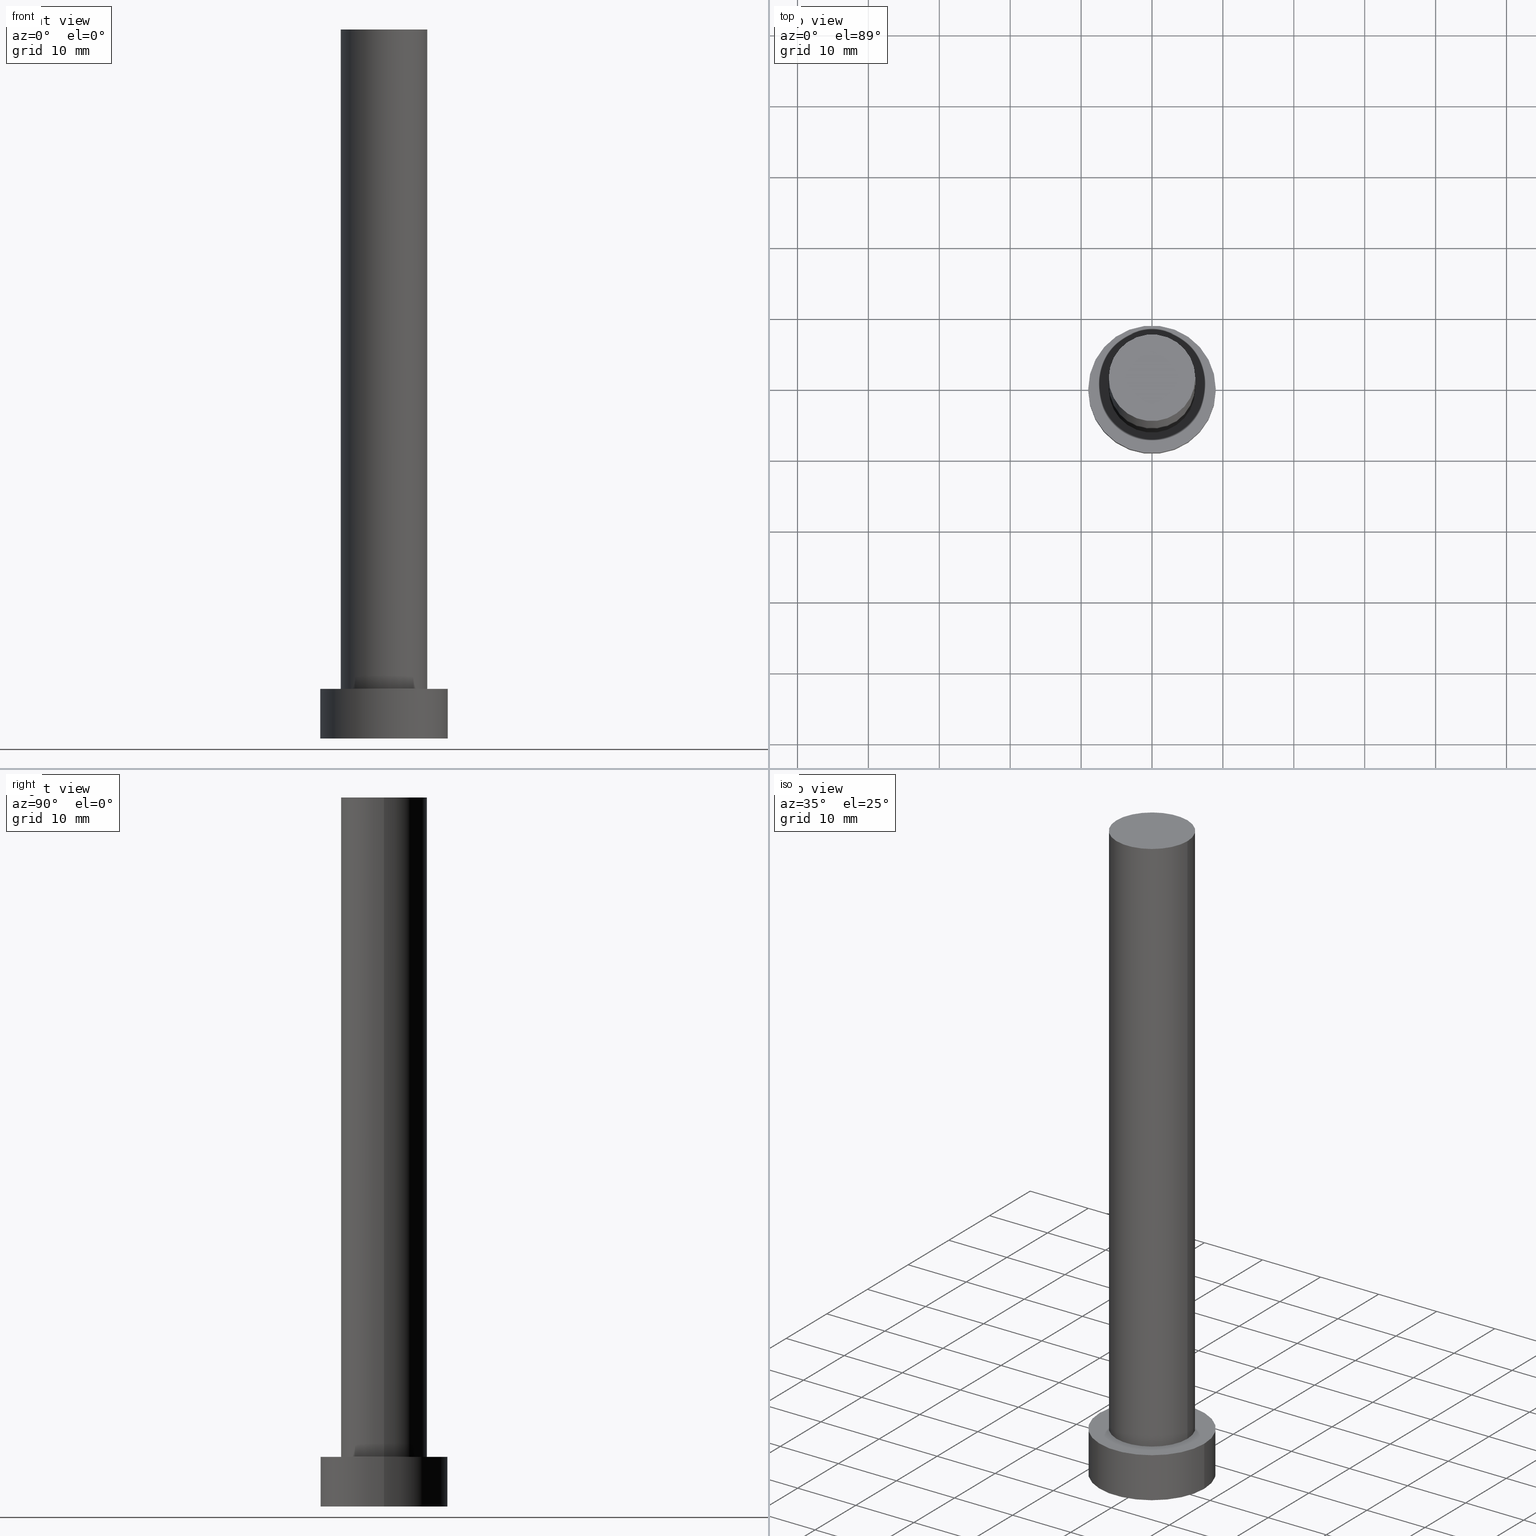
[diagram: canonical four-view strip — front | top / right | iso, engineering-drawing reading convention]
A machine part, canonical four-view strip (front | top / right | iso — engineering-drawing reading convention). The complete STEP part file that produces these views, byte-faithful:
ISO-10303-21;
HEADER;
FILE_DESCRIPTION (( 'STEP AP203' ),
    '1' );
FILE_NAME ('cea7.STEP',
    '2023-02-12T11:04:01',
    ( '' ),
    ( '' ),
    'SwSTEP 2.0',
    'SolidWorks 2019',
    '' );
FILE_SCHEMA (( 'CONFIG_CONTROL_DESIGN' ));
ENDSEC;

DATA;
#1 = CARTESIAN_POINT ( 'NONE',  ( 6.099999999999999645, 7.470345474798852320E-16, 100.0000000000000000 ) ) ;
#2 = DIRECTION ( 'NONE',  ( 0.000000000000000000, 0.000000000000000000, 1.000000000000000000 ) ) ;
#3 = EDGE_CURVE ( 'NONE', #233, #41, #45, .T. ) ;
#4 = AXIS2_PLACEMENT_3D ( 'NONE', #196, #84, #217 ) ;
#5 = CARTESIAN_POINT ( 'NONE',  ( 0.000000000000000000, 0.000000000000000000, 0.000000000000000000 ) ) ;
#6 = LOCAL_TIME ( 12, 4, 1.000000000000000000, #212 ) ;
#7 = PERSON_AND_ORGANIZATION_ROLE ( 'creator' ) ;
#8 = COORDINATED_UNIVERSAL_TIME_OFFSET ( 1, 0, .AHEAD. ) ;
#9 = VECTOR ( 'NONE', #107, 1000.000000000000000 ) ;
#10 = EDGE_LOOP ( 'NONE', ( #96, #36, #193, #195 ) ) ;
#11 = APPROVAL_ROLE ( '' ) ;
#12 = EDGE_LOOP ( 'NONE', ( #56, #39, #161, #115 ) ) ;
#13 = EDGE_CURVE ( 'NONE', #16, #140, #89, .T. ) ;
#14 = PERSON_AND_ORGANIZATION ( #154, #135 ) ;
#15 = CC_DESIGN_DATE_AND_TIME_ASSIGNMENT ( #113, #194, ( #108 ) ) ;
#16 = VERTEX_POINT ( 'NONE', #1 ) ;
#17 = LOCAL_TIME ( 12, 4, 1.000000000000000000, #8 ) ;
#18 = EDGE_LOOP ( 'NONE', ( #75, #176 ) ) ;
#19 = DIRECTION ( 'NONE',  ( 0.000000000000000000, 0.000000000000000000, 1.000000000000000000 ) ) ;
#20 = CYLINDRICAL_SURFACE ( 'NONE', #71, 6.099999999999999645 ) ;
#21 = DIRECTION ( 'NONE',  ( 1.000000000000000000, 0.000000000000000000, 0.000000000000000000 ) ) ;
#22 = CARTESIAN_POINT ( 'NONE',  ( 0.000000000000000000, 0.000000000000000000, 7.000000000000000000 ) ) ;
#23 = LINE ( 'NONE', #44, #9 ) ;
#24 = AXIS2_PLACEMENT_3D ( 'NONE', #22, #144, #181 ) ;
#25 = DIRECTION ( 'NONE',  ( 0.000000000000000000, 0.000000000000000000, 1.000000000000000000 ) ) ;
#26 = CC_DESIGN_PERSON_AND_ORGANIZATION_ASSIGNMENT ( #110, #7, ( #108 ) ) ;
#27 =( LENGTH_UNIT ( ) NAMED_UNIT ( * ) SI_UNIT ( .MILLI., .METRE. ) );
#28 = DESIGN_CONTEXT ( 'detailed design', #49, 'design' ) ;
#29 = APPROVAL_DATE_TIME ( #149, #48 ) ;
#30 = DIRECTION ( 'NONE',  ( 1.000000000000000000, 0.000000000000000000, 0.000000000000000000 ) ) ;
#31 = CALENDAR_DATE ( 2023, 12, 2 ) ;
#32 = CIRCLE ( 'NONE', #78, 9.000000000000000000 ) ;
#33 = EDGE_CURVE ( 'NONE', #16, #160, #177, .T. ) ;
#34 = CIRCLE ( 'NONE', #171, 6.099999999999999645 ) ;
#35 = EDGE_CURVE ( 'NONE', #233, #230, #47, .T. ) ;
#36 = ORIENTED_EDGE ( 'NONE', *, *, #33, .T. ) ;
#37 = ORIENTED_EDGE ( 'NONE', *, *, #112, .T. ) ;
#38 = DATE_AND_TIME ( #31, #67 ) ;
#39 = ORIENTED_EDGE ( 'NONE', *, *, #35, .F. ) ;
#40 = VECTOR ( 'NONE', #165, 1000.000000000000000 ) ;
#41 = VERTEX_POINT ( 'NONE', #105 ) ;
#42 = CARTESIAN_POINT ( 'NONE',  ( 0.000000000000000000, 0.000000000000000000, 0.000000000000000000 ) ) ;
#43 = LOCAL_TIME ( 12, 4, 1.000000000000000000, #93 ) ;
#44 = CARTESIAN_POINT ( 'NONE',  ( -6.099999999999999645, 0.000000000000000000, 100.0000000000000000 ) ) ;
#45 = LINE ( 'NONE', #184, #190 ) ;
#46 = CARTESIAN_POINT ( 'NONE',  ( -6.099999999999999645, 0.000000000000000000, 7.000000000000000000 ) ) ;
#47 = CIRCLE ( 'NONE', #226, 9.000000000000000000 ) ;
#48 = APPROVAL ( #186, 'NEUR�EN�' ) ;
#49 = APPLICATION_CONTEXT ( 'configuration controlled 3d designs of mechanical parts and assemblies' ) ;
#50 = AXIS2_PLACEMENT_3D ( 'NONE', #5, #2, #91 ) ;
#51 = COORDINATED_UNIVERSAL_TIME_OFFSET ( 1, 0, .AHEAD. ) ;
#52 = ADVANCED_FACE ( 'NONE', ( #106 ), #102, .T. ) ;
#53 = ORIENTED_EDGE ( 'NONE', *, *, #156, .F. ) ;
#54 = CC_DESIGN_DATE_AND_TIME_ASSIGNMENT ( #250, #207, ( #73 ) ) ;
#55 = APPROVAL_ROLE ( '' ) ;
#56 = ORIENTED_EDGE ( 'NONE', *, *, #224, .F. ) ;
#57 = AXIS2_PLACEMENT_3D ( 'NONE', #123, #253, #21 ) ;
#58 = CIRCLE ( 'NONE', #179, 9.000000000000000000 ) ;
#59 = DIRECTION ( 'NONE',  ( 1.000000000000000000, 0.000000000000000000, -0.000000000000000000 ) ) ;
#60 = DIRECTION ( 'NONE',  ( 0.000000000000000000, 0.000000000000000000, 1.000000000000000000 ) ) ;
#61 = EDGE_CURVE ( 'NONE', #234, #41, #32, .T. ) ;
#62 = CARTESIAN_POINT ( 'NONE',  ( 0.000000000000000000, 0.000000000000000000, 100.0000000000000000 ) ) ;
#63 = DIRECTION ( 'NONE',  ( -0.000000000000000000, -0.000000000000000000, -1.000000000000000000 ) ) ;
#64 = APPLICATION_CONTEXT ( 'configuration controlled 3d designs of mechanical parts and assemblies' ) ;
#65 = CYLINDRICAL_SURFACE ( 'NONE', #231, 9.000000000000000000 ) ;
#66 = CARTESIAN_POINT ( 'NONE',  ( 9.000000000000000000, 1.102182119232617714E-15, 7.000000000000000000 ) ) ;
#67 = LOCAL_TIME ( 12, 4, 1.000000000000000000, #51 ) ;
#68 = CARTESIAN_POINT ( 'NONE',  ( 0.000000000000000000, 0.000000000000000000, 100.0000000000000000 ) ) ;
#69 = PERSON_AND_ORGANIZATION ( #154, #135 ) ;
#70 = PLANE ( 'NONE',  #114 ) ;
#71 = AXIS2_PLACEMENT_3D ( 'NONE', #178, #81, #219 ) ;
#72 =( NAMED_UNIT ( * ) PLANE_ANGLE_UNIT ( ) SI_UNIT ( $, .RADIAN. ) );
#73 = SECURITY_CLASSIFICATION ( '', '', #116 ) ;
#74 = MANIFOLD_SOLID_BREP ( 'P�idat vysunut�m3', #122 ) ;
#75 = ORIENTED_EDGE ( 'NONE', *, *, #103, .T. ) ;
#76 = PERSON_AND_ORGANIZATION ( #154, #135 ) ;
#77 = CC_DESIGN_APPROVAL ( #48, ( #108 ) ) ;
#78 = AXIS2_PLACEMENT_3D ( 'NONE', #42, #180, #252 ) ;
#79 = DIRECTION ( 'NONE',  ( 1.000000000000000000, 0.000000000000000000, 0.000000000000000000 ) ) ;
#80 = ADVANCED_FACE ( 'NONE', ( #142, #238 ), #199, .T. ) ;
#81 = DIRECTION ( 'NONE',  ( -0.000000000000000000, -0.000000000000000000, -1.000000000000000000 ) ) ;
#82 = DIRECTION ( 'NONE',  ( -0.000000000000000000, -0.000000000000000000, -1.000000000000000000 ) ) ;
#83 = APPROVAL ( #158, 'NEUR�EN�' ) ;
#84 = DIRECTION ( 'NONE',  ( 0.000000000000000000, 0.000000000000000000, 1.000000000000000000 ) ) ;
#85 = DIRECTION ( 'NONE',  ( 0.000000000000000000, 0.000000000000000000, 1.000000000000000000 ) ) ;
#86 = DIRECTION ( 'NONE',  ( 1.000000000000000000, 0.000000000000000000, 0.000000000000000000 ) ) ;
#87 = PERSON_AND_ORGANIZATION_ROLE ( 'design_owner' ) ;
#88 = ADVANCED_BREP_SHAPE_REPRESENTATION ( 'cea7', ( #74, #50 ), #191 ) ;
#89 = CIRCLE ( 'NONE', #4, 6.099999999999999645 ) ;
#90 = PERSON_AND_ORGANIZATION ( #154, #135 ) ;
#91 = DIRECTION ( 'NONE',  ( 1.000000000000000000, 0.000000000000000000, 0.000000000000000000 ) ) ;
#92 = EDGE_CURVE ( 'NONE', #160, #248, #151, .T. ) ;
#93 = COORDINATED_UNIVERSAL_TIME_OFFSET ( 1, 0, .AHEAD. ) ;
#94 = LOCAL_TIME ( 12, 4, 1.000000000000000000, #153 ) ;
#95 = PERSON_AND_ORGANIZATION ( #154, #135 ) ;
#96 = ORIENTED_EDGE ( 'NONE', *, *, #13, .F. ) ;
#97 = APPROVAL_STATUS ( 'not_yet_approved' ) ;
#98 = ORIENTED_EDGE ( 'NONE', *, *, #168, .F. ) ;
#99 = ADVANCED_FACE ( 'NONE', ( #197 ), #20, .T. ) ;
#100 = CIRCLE ( 'NONE', #209, 9.000000000000000000 ) ;
#101 = PRODUCT ( 'cea7', 'cea7', '', ( #185 ) ) ;
#102 = CYLINDRICAL_SURFACE ( 'NONE', #170, 6.099999999999999645 ) ;
#103 = EDGE_CURVE ( 'NONE', #140, #16, #183, .T. ) ;
#104 = EDGE_LOOP ( 'NONE', ( #136, #255, #37, #211 ) ) ;
#105 = CARTESIAN_POINT ( 'NONE',  ( -9.000000000000000000, 0.000000000000000000, 0.000000000000000000 ) ) ;
#106 = FACE_OUTER_BOUND ( 'NONE', #10, .T. ) ;
#107 = DIRECTION ( 'NONE',  ( -0.000000000000000000, -0.000000000000000000, -1.000000000000000000 ) ) ;
#108 = PRODUCT_DEFINITION ( 'NEZN�M�', '', #133, #28 ) ;
#109 = CARTESIAN_POINT ( 'NONE',  ( 0.000000000000000000, 0.000000000000000000, 0.000000000000000000 ) ) ;
#110 = PERSON_AND_ORGANIZATION ( #154, #135 ) ;
#111 = PLANE ( 'NONE',  #124 ) ;
#112 = EDGE_CURVE ( 'NONE', #140, #248, #23, .T. ) ;
#113 = DATE_AND_TIME ( #169, #43 ) ;
#114 = AXIS2_PLACEMENT_3D ( 'NONE', #203, #223, #148 ) ;
#115 = ORIENTED_EDGE ( 'NONE', *, *, #173, .T. ) ;
#116 = SECURITY_CLASSIFICATION_LEVEL ( 'unclassified' ) ;
#117 = EDGE_LOOP ( 'NONE', ( #98, #216 ) ) ;
#118 = PERSON_AND_ORGANIZATION_ROLE ( 'classification_officer' ) ;
#119 = CARTESIAN_POINT ( 'NONE',  ( 0.000000000000000000, 0.000000000000000000, 100.0000000000000000 ) ) ;
#120 = EDGE_LOOP ( 'NONE', ( #53, #125, #155, #198 ) ) ;
#121 = UNCERTAINTY_MEASURE_WITH_UNIT (LENGTH_MEASURE( 1.000000000000000082E-05 ), #27, 'distance_accuracy_value', 'NONE');
#122 = CLOSED_SHELL ( 'NONE', ( #52, #146, #137, #80, #215, #99, #182 ) ) ;
#123 = CARTESIAN_POINT ( 'NONE',  ( 0.000000000000000000, 0.000000000000000000, 7.000000000000000000 ) ) ;
#124 = AXIS2_PLACEMENT_3D ( 'NONE', #68, #25, #225 ) ;
#125 = ORIENTED_EDGE ( 'NONE', *, *, #224, .T. ) ;
#126 = CC_DESIGN_PERSON_AND_ORGANIZATION_ASSIGNMENT ( #76, #227, ( #133 ) ) ;
#127 = FACE_OUTER_BOUND ( 'NONE', #120, .T. ) ;
#128 = CARTESIAN_POINT ( 'NONE',  ( -9.000000000000000000, 0.000000000000000000, 7.000000000000000000 ) ) ;
#129 = APPROVAL_PERSON_ORGANIZATION ( #172, #131, #11 ) ;
#130 = DIRECTION ( 'NONE',  ( 1.000000000000000000, 0.000000000000000000, 0.000000000000000000 ) ) ;
#131 = APPROVAL ( #97, 'NEUR�EN�' ) ;
#132 = CALENDAR_DATE ( 2023, 12, 2 ) ;
#133 = PRODUCT_DEFINITION_FORMATION_WITH_SPECIFIED_SOURCE ( 'LIBOVOLN�', '', #101, .NOT_KNOWN. ) ;
#134 = ORIENTED_EDGE ( 'NONE', *, *, #156, .T. ) ;
#135 = ORGANIZATION ( 'NEUR�EN�', 'NEUR�EN�', '' ) ;
#136 = ORIENTED_EDGE ( 'NONE', *, *, #33, .F. ) ;
#137 = ADVANCED_FACE ( 'NONE', ( #164 ), #241, .T. ) ;
#138 = EDGE_LOOP ( 'NONE', ( #192, #213 ) ) ;
#139 = PERSON_AND_ORGANIZATION ( #154, #135 ) ;
#140 = VERTEX_POINT ( 'NONE', #221 ) ;
#141 = CARTESIAN_POINT ( 'NONE',  ( 6.099999999999999645, 7.470345474798852320E-16, 100.0000000000000000 ) ) ;
#142 = FACE_BOUND ( 'NONE', #117, .T. ) ;
#143 = CC_DESIGN_PERSON_AND_ORGANIZATION_ASSIGNMENT ( #95, #118, ( #73 ) ) ;
#144 = DIRECTION ( 'NONE',  ( -0.000000000000000000, -0.000000000000000000, -1.000000000000000000 ) ) ;
#145 = DIRECTION ( 'NONE',  ( -1.000000000000000000, 0.000000000000000000, 0.000000000000000000 ) ) ;
#146 = ADVANCED_FACE ( 'NONE', ( #127 ), #65, .T. ) ;
#147 = CARTESIAN_POINT ( 'NONE',  ( 9.000000000000000000, 1.102182119232617714E-15, 0.000000000000000000 ) ) ;
#148 = DIRECTION ( 'NONE',  ( 1.000000000000000000, 0.000000000000000000, -0.000000000000000000 ) ) ;
#149 = DATE_AND_TIME ( #132, #17 ) ;
#150 = DIRECTION ( 'NONE',  ( 0.000000000000000000, 0.000000000000000000, 1.000000000000000000 ) ) ;
#151 = CIRCLE ( 'NONE', #57, 6.099999999999999645 ) ;
#152 = FACE_OUTER_BOUND ( 'NONE', #138, .T. ) ;
#153 = COORDINATED_UNIVERSAL_TIME_OFFSET ( 1, 0, .AHEAD. ) ;
#154 = PERSON ( 'NEUR�EN�', 'NEUR�EN�', 'NEUR�EN�', ('NEUR�EN�'), ('NEUR�EN�'), ('NEUR�EN�') ) ;
#155 = ORIENTED_EDGE ( 'NONE', *, *, #61, .T. ) ;
#156 = EDGE_CURVE ( 'NONE', #230, #233, #100, .T. ) ;
#157 = VECTOR ( 'NONE', #159, 1000.000000000000000 ) ;
#158 = APPROVAL_STATUS ( 'not_yet_approved' ) ;
#159 = DIRECTION ( 'NONE',  ( -0.000000000000000000, -0.000000000000000000, -1.000000000000000000 ) ) ;
#160 = VERTEX_POINT ( 'NONE', #167 ) ;
#161 = ORIENTED_EDGE ( 'NONE', *, *, #3, .T. ) ;
#162 = DIRECTION ( 'NONE',  ( 1.000000000000000000, 0.000000000000000000, 0.000000000000000000 ) ) ;
#163 = CC_DESIGN_APPROVAL ( #131, ( #133 ) ) ;
#164 = FACE_OUTER_BOUND ( 'NONE', #12, .T. ) ;
#165 = DIRECTION ( 'NONE',  ( -0.000000000000000000, -0.000000000000000000, -1.000000000000000000 ) ) ;
#166 = DIRECTION ( 'NONE',  ( 0.000000000000000000, 0.000000000000000000, 1.000000000000000000 ) ) ;
#167 = CARTESIAN_POINT ( 'NONE',  ( 6.099999999999999645, 7.470345474798852320E-16, 7.000000000000000000 ) ) ;
#168 = EDGE_CURVE ( 'NONE', #248, #160, #34, .T. ) ;
#169 = CALENDAR_DATE ( 2023, 12, 2 ) ;
#170 = AXIS2_PLACEMENT_3D ( 'NONE', #119, #236, #254 ) ;
#171 = AXIS2_PLACEMENT_3D ( 'NONE', #205, #150, #30 ) ;
#172 = PERSON_AND_ORGANIZATION ( #154, #135 ) ;
#173 = EDGE_CURVE ( 'NONE', #41, #234, #58, .T. ) ;
#174 = PRODUCT_DEFINITION_SHAPE ( 'NONE', 'NONE',  #108 ) ;
#175 = SHAPE_DEFINITION_REPRESENTATION ( #174, #88 ) ;
#176 = ORIENTED_EDGE ( 'NONE', *, *, #13, .T. ) ;
#177 = LINE ( 'NONE', #141, #157 ) ;
#178 = CARTESIAN_POINT ( 'NONE',  ( 0.000000000000000000, 0.000000000000000000, 100.0000000000000000 ) ) ;
#179 = AXIS2_PLACEMENT_3D ( 'NONE', #109, #166, #86 ) ;
#180 = DIRECTION ( 'NONE',  ( 0.000000000000000000, 0.000000000000000000, 1.000000000000000000 ) ) ;
#181 = DIRECTION ( 'NONE',  ( -1.000000000000000000, 0.000000000000000000, 0.000000000000000000 ) ) ;
#182 = ADVANCED_FACE ( 'NONE', ( #245 ), #111, .T. ) ;
#183 = CIRCLE ( 'NONE', #235, 6.099999999999999645 ) ;
#184 = CARTESIAN_POINT ( 'NONE',  ( -9.000000000000000000, 0.000000000000000000, 7.000000000000000000 ) ) ;
#185 = MECHANICAL_CONTEXT ( 'NONE', #64, 'mechanical' ) ;
#186 = APPROVAL_STATUS ( 'not_yet_approved' ) ;
#187 = CC_DESIGN_PERSON_AND_ORGANIZATION_ASSIGNMENT ( #139, #189, ( #133 ) ) ;
#188 = APPROVAL_ROLE ( '' ) ;
#189 = PERSON_AND_ORGANIZATION_ROLE ( 'design_supplier' ) ;
#190 = VECTOR ( 'NONE', #82, 1000.000000000000000 ) ;
#191 =( GEOMETRIC_REPRESENTATION_CONTEXT ( 3 ) GLOBAL_UNCERTAINTY_ASSIGNED_CONTEXT ( ( #121 ) ) GLOBAL_UNIT_ASSIGNED_CONTEXT ( ( #27, #72, #201 ) ) REPRESENTATION_CONTEXT ( 'NONE', 'WORKASPACE' ) );
#192 = ORIENTED_EDGE ( 'NONE', *, *, #173, .F. ) ;
#193 = ORIENTED_EDGE ( 'NONE', *, *, #92, .T. ) ;
#194 = DATE_TIME_ROLE ( 'creation_date' ) ;
#195 = ORIENTED_EDGE ( 'NONE', *, *, #112, .F. ) ;
#196 = CARTESIAN_POINT ( 'NONE',  ( 0.000000000000000000, 0.000000000000000000, 100.0000000000000000 ) ) ;
#197 = FACE_OUTER_BOUND ( 'NONE', #104, .T. ) ;
#198 = ORIENTED_EDGE ( 'NONE', *, *, #3, .F. ) ;
#199 = PLANE ( 'NONE',  #218 ) ;
#200 = CARTESIAN_POINT ( 'NONE',  ( 0.000000000000000000, 0.000000000000000000, 7.000000000000000000 ) ) ;
#201 =( NAMED_UNIT ( * ) SI_UNIT ( $, .STERADIAN. ) SOLID_ANGLE_UNIT ( ) );
#202 = CC_DESIGN_PERSON_AND_ORGANIZATION_ASSIGNMENT ( #90, #87, ( #101 ) ) ;
#203 = CARTESIAN_POINT ( 'NONE',  ( 0.000000000000000000, 0.000000000000000000, 0.000000000000000000 ) ) ;
#204 = DIRECTION ( 'NONE',  ( 0.000000000000000000, 0.000000000000000000, 1.000000000000000000 ) ) ;
#205 = CARTESIAN_POINT ( 'NONE',  ( 0.000000000000000000, 0.000000000000000000, 7.000000000000000000 ) ) ;
#206 = APPROVAL_DATE_TIME ( #232, #131 ) ;
#207 = DATE_TIME_ROLE ( 'classification_date' ) ;
#208 = CC_DESIGN_APPROVAL ( #83, ( #73 ) ) ;
#209 = AXIS2_PLACEMENT_3D ( 'NONE', #200, #204, #130 ) ;
#210 = CALENDAR_DATE ( 2023, 12, 2 ) ;
#211 = ORIENTED_EDGE ( 'NONE', *, *, #168, .T. ) ;
#212 = COORDINATED_UNIVERSAL_TIME_OFFSET ( 1, 0, .AHEAD. ) ;
#213 = ORIENTED_EDGE ( 'NONE', *, *, #61, .F. ) ;
#214 = APPROVAL_PERSON_ORGANIZATION ( #14, #83, #55 ) ;
#215 = ADVANCED_FACE ( 'NONE', ( #152 ), #70, .F. ) ;
#216 = ORIENTED_EDGE ( 'NONE', *, *, #92, .F. ) ;
#217 = DIRECTION ( 'NONE',  ( 1.000000000000000000, 0.000000000000000000, 0.000000000000000000 ) ) ;
#218 = AXIS2_PLACEMENT_3D ( 'NONE', #222, #85, #59 ) ;
#219 = DIRECTION ( 'NONE',  ( -1.000000000000000000, 0.000000000000000000, 0.000000000000000000 ) ) ;
#220 = CC_DESIGN_SECURITY_CLASSIFICATION ( #73, ( #133 ) ) ;
#221 = CARTESIAN_POINT ( 'NONE',  ( -6.099999999999999645, 0.000000000000000000, 100.0000000000000000 ) ) ;
#222 = CARTESIAN_POINT ( 'NONE',  ( 0.000000000000000000, 0.000000000000000000, 7.000000000000000000 ) ) ;
#223 = DIRECTION ( 'NONE',  ( 0.000000000000000000, 0.000000000000000000, 1.000000000000000000 ) ) ;
#224 = EDGE_CURVE ( 'NONE', #230, #234, #242, .T. ) ;
#225 = DIRECTION ( 'NONE',  ( 1.000000000000000000, 0.000000000000000000, -0.000000000000000000 ) ) ;
#226 = AXIS2_PLACEMENT_3D ( 'NONE', #237, #19, #79 ) ;
#227 = PERSON_AND_ORGANIZATION_ROLE ( 'creator' ) ;
#228 = PRODUCT_RELATED_PRODUCT_CATEGORY ( 'detail', '', ( #101 ) ) ;
#229 = ORIENTED_EDGE ( 'NONE', *, *, #35, .T. ) ;
#230 = VERTEX_POINT ( 'NONE', #246 ) ;
#231 = AXIS2_PLACEMENT_3D ( 'NONE', #239, #63, #145 ) ;
#232 = DATE_AND_TIME ( #210, #94 ) ;
#233 = VERTEX_POINT ( 'NONE', #128 ) ;
#234 = VERTEX_POINT ( 'NONE', #147 ) ;
#235 = AXIS2_PLACEMENT_3D ( 'NONE', #62, #60, #162 ) ;
#236 = DIRECTION ( 'NONE',  ( -0.000000000000000000, -0.000000000000000000, -1.000000000000000000 ) ) ;
#237 = CARTESIAN_POINT ( 'NONE',  ( 0.000000000000000000, 0.000000000000000000, 7.000000000000000000 ) ) ;
#238 = FACE_OUTER_BOUND ( 'NONE', #251, .T. ) ;
#239 = CARTESIAN_POINT ( 'NONE',  ( 0.000000000000000000, 0.000000000000000000, 7.000000000000000000 ) ) ;
#240 = APPROVAL_PERSON_ORGANIZATION ( #69, #48, #188 ) ;
#241 = CYLINDRICAL_SURFACE ( 'NONE', #24, 9.000000000000000000 ) ;
#242 = LINE ( 'NONE', #66, #40 ) ;
#243 = APPLICATION_PROTOCOL_DEFINITION ( 'international standard', 'config_control_design', 1994, #64 ) ;
#244 = APPLICATION_PROTOCOL_DEFINITION ( 'international standard', 'config_control_design', 1994, #49 ) ;
#245 = FACE_OUTER_BOUND ( 'NONE', #18, .T. ) ;
#246 = CARTESIAN_POINT ( 'NONE',  ( 9.000000000000000000, 1.102182119232617714E-15, 7.000000000000000000 ) ) ;
#247 = CALENDAR_DATE ( 2023, 12, 2 ) ;
#248 = VERTEX_POINT ( 'NONE', #46 ) ;
#249 = APPROVAL_DATE_TIME ( #38, #83 ) ;
#250 = DATE_AND_TIME ( #247, #6 ) ;
#251 = EDGE_LOOP ( 'NONE', ( #229, #134 ) ) ;
#252 = DIRECTION ( 'NONE',  ( 1.000000000000000000, 0.000000000000000000, 0.000000000000000000 ) ) ;
#253 = DIRECTION ( 'NONE',  ( 0.000000000000000000, 0.000000000000000000, 1.000000000000000000 ) ) ;
#254 = DIRECTION ( 'NONE',  ( -1.000000000000000000, 0.000000000000000000, 0.000000000000000000 ) ) ;
#255 = ORIENTED_EDGE ( 'NONE', *, *, #103, .F. ) ;
ENDSEC;
END-ISO-10303-21;
